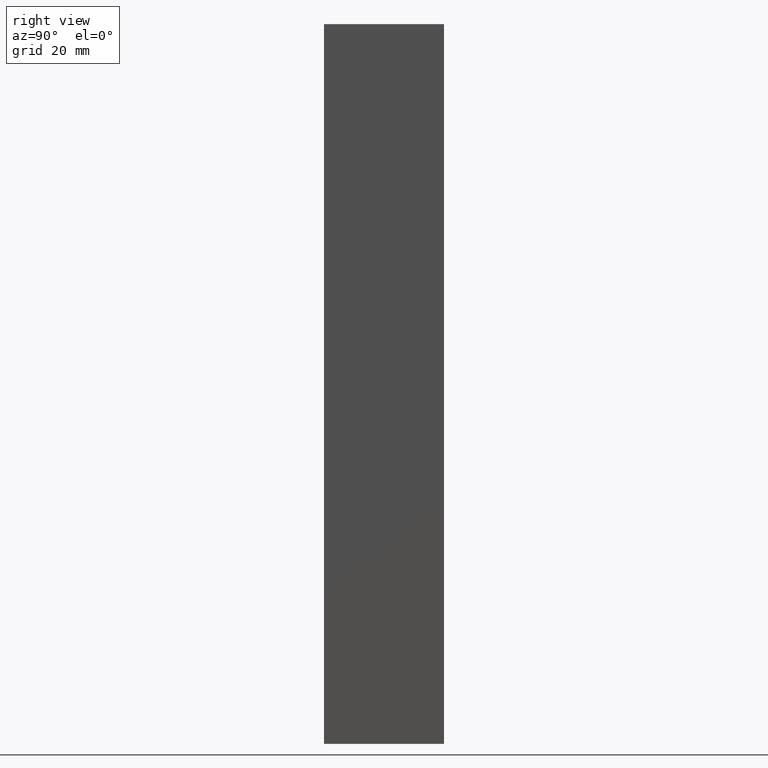
[diagram: clean part render]
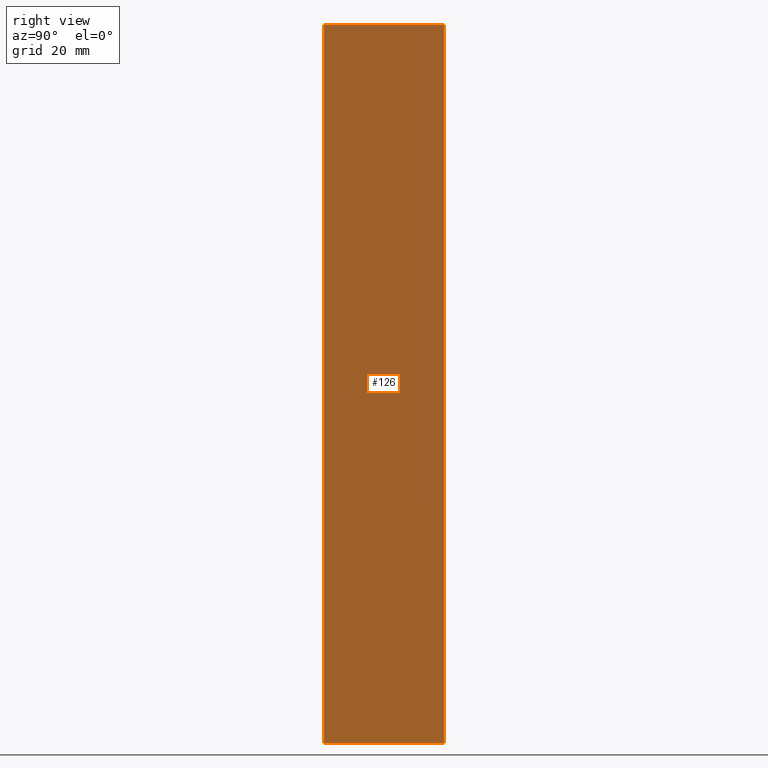
[diagram: same view with one face highlighted and labeled with its STEP entity id]
A machine part, right view. The second image highlights one B-rep face of the part: STEP entity #126.
In plain terms, the highlighted planar face has unit normal (1, 0, 0).
Its self-contained STEP definition (entity closure, byte-faithful):
#20=FACE_OUTER_BOUND('',#27,.T.);
#27=EDGE_LOOP('',(#105,#106,#107,#108));
#29=LINE('',#193,#44);
#34=LINE('',#203,#49);
#42=LINE('',#218,#57);
#43=LINE('',#220,#58);
#44=VECTOR('',#162,10.);
#49=VECTOR('',#169,10.);
#57=VECTOR('',#183,10.);
#58=VECTOR('',#186,10.);
#59=VERTEX_POINT('',#191);
#60=VERTEX_POINT('',#192);
#64=VERTEX_POINT('',#202);
#68=VERTEX_POINT('',#216);
#69=EDGE_CURVE('',#59,#60,#29,.T.);
#74=EDGE_CURVE('',#64,#60,#34,.T.);
#82=EDGE_CURVE('',#59,#68,#42,.T.);
#83=EDGE_CURVE('',#64,#68,#43,.T.);
#105=ORIENTED_EDGE('',*,*,#82,.T.);
#106=ORIENTED_EDGE('',*,*,#83,.F.);
#107=ORIENTED_EDGE('',*,*,#74,.T.);
#108=ORIENTED_EDGE('',*,*,#69,.F.);
#119=PLANE('',#156);
#126=ADVANCED_FACE('',(#20),#119,.T.);
#156=AXIS2_PLACEMENT_3D('',#219,#184,#185);
#162=DIRECTION('',(1.11022302462516E-16,-1.,0.));
#169=DIRECTION('',(0.,0.,-1.));
#183=DIRECTION('',(0.,0.,1.));
#184=DIRECTION('center_axis',(1.,1.11022302462516E-16,0.));
#185=DIRECTION('ref_axis',(-1.11022302462516E-16,1.,0.));
#186=DIRECTION('',(-1.11022302462516E-16,1.,0.));
#191=CARTESIAN_POINT('',(-2.22044604925031E-15,20.,-60.));
#192=CARTESIAN_POINT('',(0.,0.,-60.));
#193=CARTESIAN_POINT('',(0.,0.,-60.));
#202=CARTESIAN_POINT('',(0.,0.,60.));
#203=CARTESIAN_POINT('',(0.,0.,0.));
#216=CARTESIAN_POINT('',(-2.22044604925031E-15,20.,60.));
#218=CARTESIAN_POINT('',(-2.22044604925031E-15,20.,0.));
#219=CARTESIAN_POINT('Origin',(0.,0.,0.));
#220=CARTESIAN_POINT('',(0.,0.,60.));